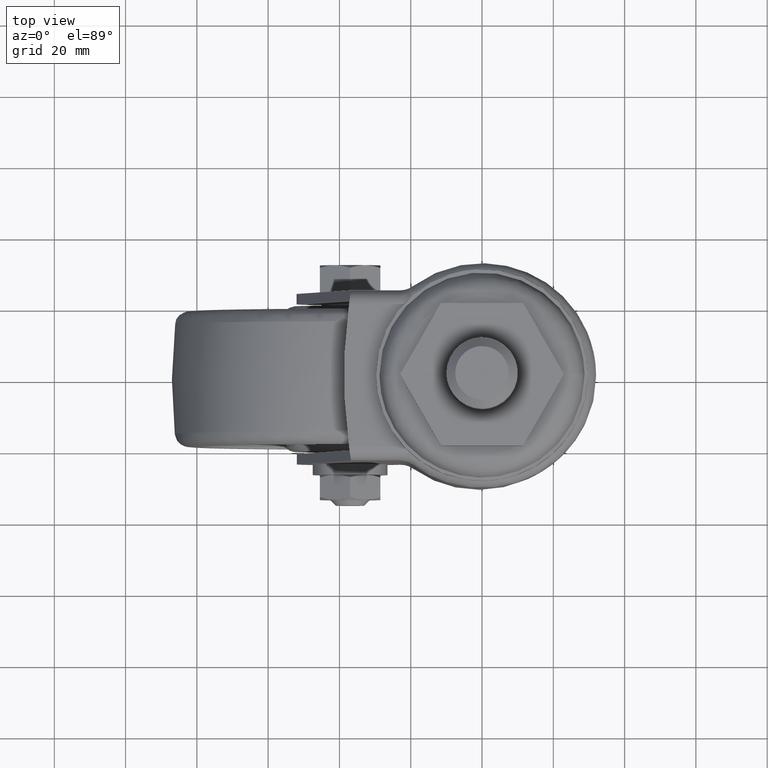
[diagram: clean part render]
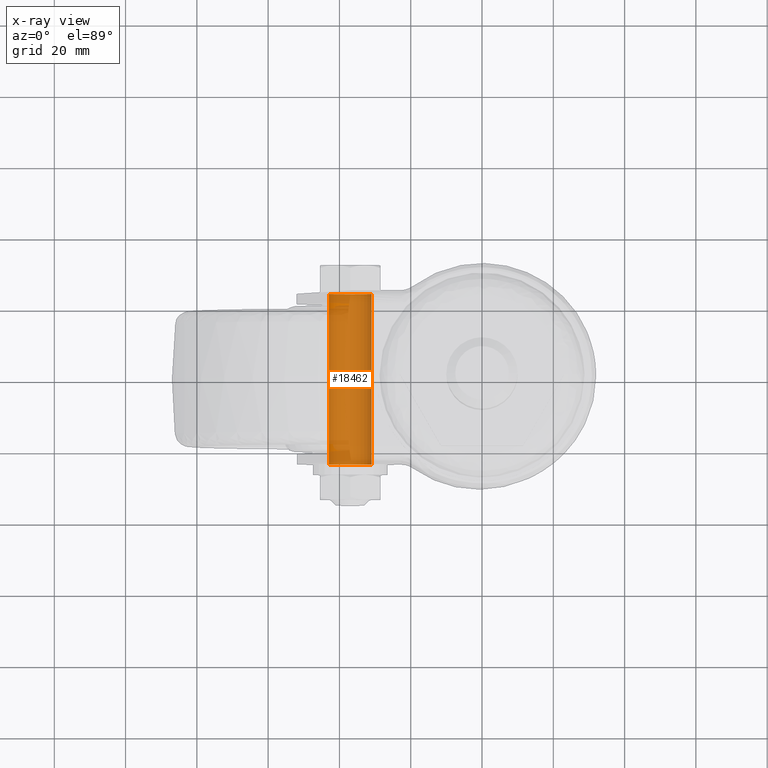
[diagram: x-ray — body ghosted, one internal face saturated and labeled with its STEP entity id]
A machine part, top view, then the same camera in x-ray: the body is ghosted and one INTERNAL B-rep face — a face not visible from any outside direction — is saturated and labeled: STEP entity #18462.
In plain terms, the highlighted face is a freeform B-spline surface patch.
Its self-contained STEP definition (entity closure, byte-faithful):
#18329=CARTESIAN_POINT('',(-37.0,-23.899999999999999,-79.500000000000000));
#18330=VERTEX_POINT('',#18329);
#18331=CARTESIAN_POINT('',(-42.988808790507697,-23.899999999999999,-73.866291237593259));
#18332=VERTEX_POINT('',#18331);
#18333=CARTESIAN_POINT('',(-37.0,-23.899999999999999,-79.500000000000000));
#18334=CARTESIAN_POINT('',(-42.644236401071474,-23.899999999999991,-79.500000000000000));
#18335=CARTESIAN_POINT('',(-42.988808790507704,-23.899999999999999,-73.866291237593273));
#18343=(BOUNDED_CURVE()B_SPLINE_CURVE(2,(#18333,#18334,#18335),.UNSPECIFIED.,.F.,.U.)B_SPLINE_CURVE_WITH_KNOTS((3,3),(0.500000000000000,0.739332962230901),.UNSPECIFIED.)CURVE()GEOMETRIC_REPRESENTATION_ITEM()RATIONAL_B_SPLINE_CURVE((1.0,0.719603993296132,0.976072041649483))REPRESENTATION_ITEM(''));
#18344=EDGE_CURVE('',#18330,#18332,#18343,.T.);
#18346=CARTESIAN_POINT('',(-31.011191209492289,-23.899999999999999,-73.133708762406741));
#18347=VERTEX_POINT('',#18346);
#18348=CARTESIAN_POINT('',(-31.011191209492296,-23.899999999999999,-73.133708762406741));
#18349=CARTESIAN_POINT('',(-31.000000000000007,-23.899999999999999,-73.316683420015877));
#18350=CARTESIAN_POINT('',(-31.0,-23.899999999999999,-73.500000000000000));
#18351=CARTESIAN_POINT('',(-31.000000000000007,-23.899999999999991,-79.500000000000014));
#18352=CARTESIAN_POINT('',(-37.0,-23.899999999999999,-79.500000000000000));
#18360=(BOUNDED_CURVE()B_SPLINE_CURVE(2,(#18348,#18349,#18350,#18351,#18352),.UNSPECIFIED.,.F.,.U.)B_SPLINE_CURVE_WITH_KNOTS((3,2,3),(0.239332962230901,0.250000000000000,0.500000000000000),.UNSPECIFIED.)CURVE()GEOMETRIC_REPRESENTATION_ITEM()RATIONAL_B_SPLINE_CURVE((0.976072041649483,0.987502787890416,1.0,0.707106781186548,1.0))REPRESENTATION_ITEM(''));
#18361=EDGE_CURVE('',#18347,#18330,#18360,.T.);
#18396=CARTESIAN_POINT('',(-31.011191209468802,-25.095750049999999,-73.133708762790860));
#18397=CARTESIAN_POINT('',(-30.644899972259662,-25.095750049999999,-79.122517553322055));
#18398=CARTESIAN_POINT('',(-36.633708762790860,-25.095750049999999,-79.488808790531195));
#18399=CARTESIAN_POINT('',(-42.622517553322069,-25.095750049999999,-79.855100027740335));
#18400=CARTESIAN_POINT('',(-42.988808790531202,-25.095750049999999,-73.866291237209140));
#18401=CARTESIAN_POINT('',(-31.011191209468802,25.155645801249701,-73.133708762790860));
#18402=CARTESIAN_POINT('',(-30.644899972259662,25.155645801249708,-79.122517553322055));
#18403=CARTESIAN_POINT('',(-36.633708762790860,25.155645801249701,-79.488808790531195));
#18404=CARTESIAN_POINT('',(-42.622517553322069,25.155645801249708,-79.855100027740335));
#18405=CARTESIAN_POINT('',(-42.988808790531202,25.155645801249701,-73.866291237209140));
#18413=(BOUNDED_SURFACE()B_SPLINE_SURFACE(2,1,((#18396,#18401),(#18397,#18402),(#18398,#18403),(#18399,#18404),(#18400,#18405)),.UNSPECIFIED.,.F.,.F.,.U.)B_SPLINE_SURFACE_WITH_KNOTS((3,2,3),(2,2),(0.0,9.941125496954268,19.882250993908539),(0.0,50.251395851249697),.UNSPECIFIED.)GEOMETRIC_REPRESENTATION_ITEM()RATIONAL_B_SPLINE_SURFACE(((1.0,1.0),(0.707106781186548,0.707106781186548),(1.0,1.0),(0.707106781186548,0.707106781186548),(1.0,1.0)))REPRESENTATION_ITEM('')SURFACE());
#18414=ORIENTED_EDGE('',*,*,#18361,.T.);
#18415=ORIENTED_EDGE('',*,*,#18344,.T.);
#18416=CARTESIAN_POINT('',(-42.988808790507697,23.930001999999700,-73.866291237593259));
#18417=VERTEX_POINT('',#18416);
#18418=CARTESIAN_POINT('',(-42.988808790507697,-23.899999999999999,-73.866291237593259));
#18419=CARTESIAN_POINT('',(-42.988808790507697,23.930001999999700,-73.866291237593259));
#18420=QUASI_UNIFORM_CURVE('',1,(#18418,#18419),.UNSPECIFIED.,.F.,.U.);
#18421=EDGE_CURVE('',#18332,#18417,#18420,.T.);
#18422=ORIENTED_EDGE('',*,*,#18421,.T.);
#18423=CARTESIAN_POINT('',(-37.0,23.930001999999700,-79.500000000000000));
#18424=VERTEX_POINT('',#18423);
#18425=CARTESIAN_POINT('',(-37.0,23.930001999999700,-79.500000000000000));
#18426=CARTESIAN_POINT('',(-42.644236401071474,23.930001999999700,-79.500000000000000));
#18427=CARTESIAN_POINT('',(-42.988808790507704,23.930001999999696,-73.866291237593273));
#18435=(BOUNDED_CURVE()B_SPLINE_CURVE(2,(#18425,#18426,#18427),.UNSPECIFIED.,.F.,.U.)B_SPLINE_CURVE_WITH_KNOTS((3,3),(0.500000000000000,0.739332962230901),.UNSPECIFIED.)CURVE()GEOMETRIC_REPRESENTATION_ITEM()RATIONAL_B_SPLINE_CURVE((1.0,0.719603993296132,0.976072041649483))REPRESENTATION_ITEM(''));
#18436=EDGE_CURVE('',#18424,#18417,#18435,.T.);
#18437=ORIENTED_EDGE('',*,*,#18436,.F.);
#18438=CARTESIAN_POINT('',(-31.011191209492289,23.930001999999700,-73.133708762406741));
#18439=VERTEX_POINT('',#18438);
#18440=CARTESIAN_POINT('',(-31.011191209492296,23.930001999999700,-73.133708762406727));
#18441=CARTESIAN_POINT('',(-31.0,23.930001999999703,-73.316683420015863));
#18442=CARTESIAN_POINT('',(-31.0,23.930001999999700,-73.500000000000000));
#18443=CARTESIAN_POINT('',(-31.000000000000007,23.930001999999693,-79.500000000000014));
#18444=CARTESIAN_POINT('',(-37.0,23.930001999999700,-79.500000000000000));
#18452=(BOUNDED_CURVE()B_SPLINE_CURVE(2,(#18440,#18441,#18442,#18443,#18444),.UNSPECIFIED.,.F.,.U.)B_SPLINE_CURVE_WITH_KNOTS((3,2,3),(0.239332962230901,0.250000000000000,0.500000000000000),.UNSPECIFIED.)CURVE()GEOMETRIC_REPRESENTATION_ITEM()RATIONAL_B_SPLINE_CURVE((0.976072041649483,0.987502787890416,1.0,0.707106781186548,1.0))REPRESENTATION_ITEM(''));
#18453=EDGE_CURVE('',#18439,#18424,#18452,.T.);
#18454=ORIENTED_EDGE('',*,*,#18453,.F.);
#18455=CARTESIAN_POINT('',(-31.011191209492289,-23.899999999999999,-73.133708762406741));
#18456=CARTESIAN_POINT('',(-31.011191209492289,23.930001999999700,-73.133708762406741));
#18457=QUASI_UNIFORM_CURVE('',1,(#18455,#18456),.UNSPECIFIED.,.F.,.U.);
#18458=EDGE_CURVE('',#18347,#18439,#18457,.T.);
#18459=ORIENTED_EDGE('',*,*,#18458,.F.);
#18460=EDGE_LOOP('',(#18414,#18415,#18422,#18437,#18454,#18459));
#18461=FACE_OUTER_BOUND('',#18460,.T.);
#18462=ADVANCED_FACE('',(#18461),#18413,.T.);